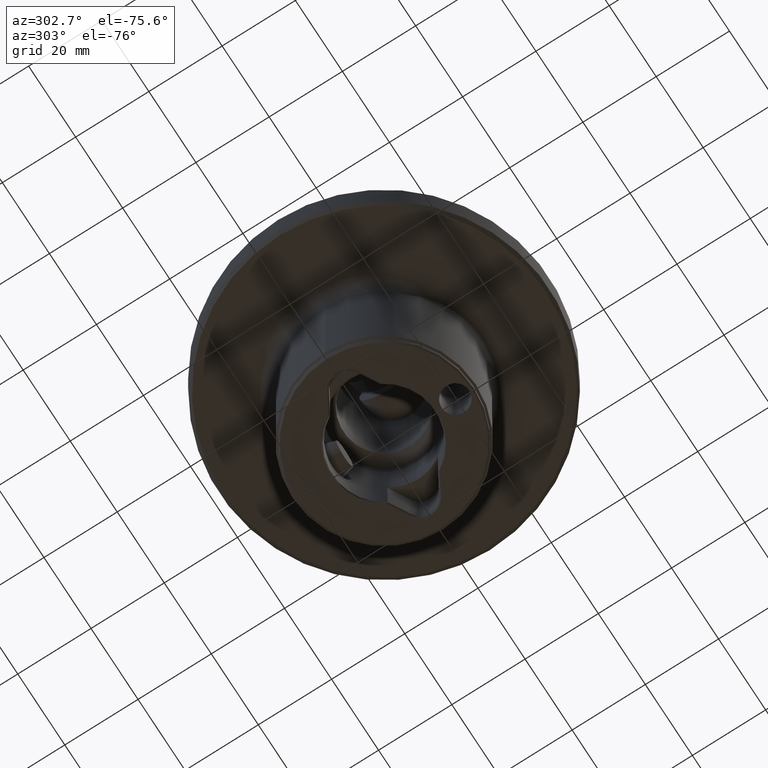
[diagram: clean part render]
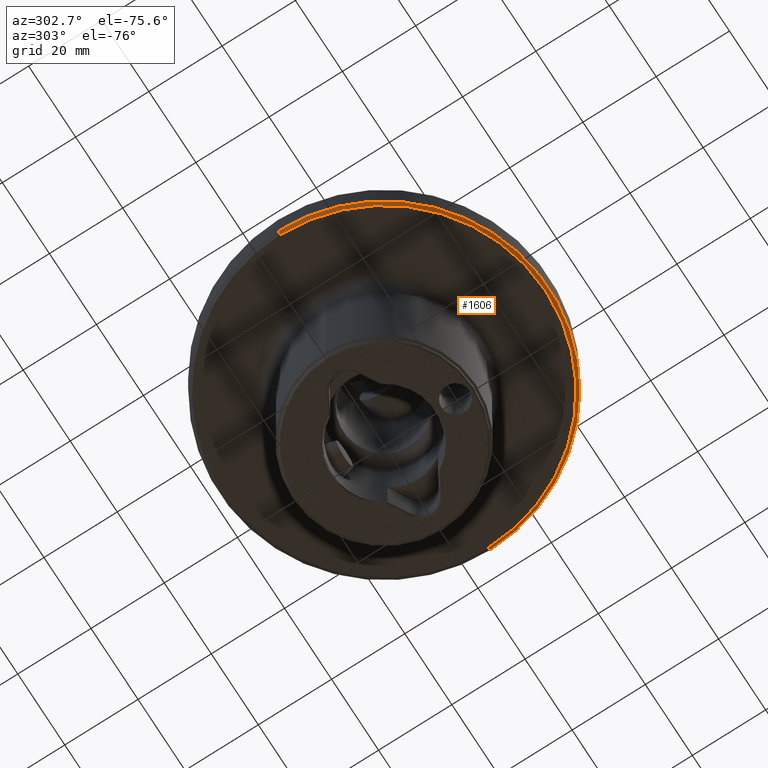
[diagram: same view with one face highlighted and labeled with its STEP entity id]
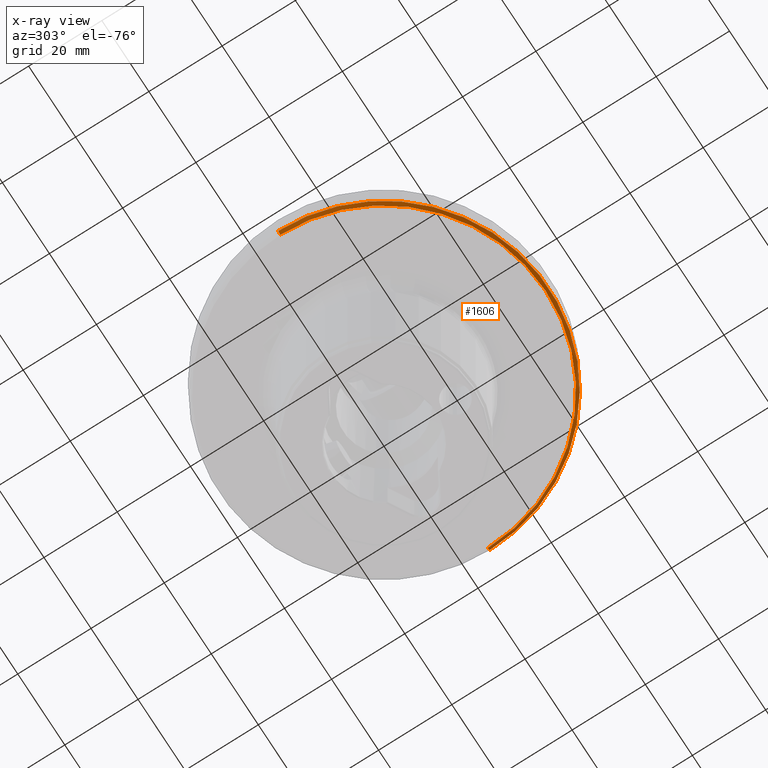
[diagram: x-ray of the same camera — body ghosted, the highlighted face saturated]
A machine part, auxiliary view. The second image highlights one B-rep face of the part: STEP entity #1606.
The next image is the same camera in x-ray: the body ghosted, the highlighted face saturated — about 0% of this face is hidden behind the body in this view.
In plain terms, the highlighted conical surface has half-angle 45 deg.
Its self-contained STEP definition (entity closure, byte-faithful):
#826=VERTEX_POINT('NONE',#2386);
#900=VERTEX_POINT('NONE',#2465);
#1194=VERTEX_POINT('NONE',#2792);
#1310=EDGE_CURVE('NONE',#1194,#900,#2919,.T.);
#1316=EDGE_CURVE('NONE',#1718,#826,#2925,.T.);
#1606=ADVANCED_FACE('NONE',(#3252),#3253,.T.);
#1718=VERTEX_POINT('NONE',#3385);
#1742=EDGE_CURVE('NONE',#826,#900,#3412,.T.);
#2152=EDGE_CURVE('NONE',#1718,#1194,#3866,.T.);
#2386=CARTESIAN_POINT('',(45.0,0.0,-11.05));
#2465=CARTESIAN_POINT('',(-45.0,5.5107285922007E-015,-11.05));
#2792=CARTESIAN_POINT('',(-44.15,5.45868282216325E-015,-11.9));
#2919=LINE('',#5074,#5075);
#2925=LINE('',#5084,#5085);
#3252=FACE_OUTER_BOUND('',#5596,.T.);
#3253=CONICAL_SURFACE('',#5597,44.15,0.785398163397445);
#3385=CARTESIAN_POINT('',(44.15,0.0,-11.9));
#3412=CIRCLE('',#5855,45.0);
#3866=CIRCLE('',#6823,44.15);
#5074=CARTESIAN_POINT('',(-44.15,5.40663705212579E-015,-11.9));
#5075=VECTOR('',#7869,1000.0);
#5084=CARTESIAN_POINT('',(44.15,0.0,-11.9));
#5085=VECTOR('',#7871,1000.0);
#5596=EDGE_LOOP('',(#8306,#8307,#8308,#8309));
#5597=AXIS2_PLACEMENT_3D('',#8310,#8311,#8312);
#5855=AXIS2_PLACEMENT_3D('',#8535,#8536,#8537);
#6823=AXIS2_PLACEMENT_3D('',#9062,#9063,#9064);
#7869=DIRECTION('',(-0.707106781186545,8.65927457071932E-017,0.70710678118655));
#7871=DIRECTION('',(0.707106781186545,0.0,0.70710678118655));
#8306=ORIENTED_EDGE('',*,*,#1310,.F.);
#8307=ORIENTED_EDGE('',*,*,#2152,.F.);
#8308=ORIENTED_EDGE('',*,*,#1316,.T.);
#8309=ORIENTED_EDGE('',*,*,#1742,.T.);
#8310=CARTESIAN_POINT('',(0.0,0.0,-11.9));
#8311=DIRECTION('',(-0.0,-0.0,1.0));
#8312=DIRECTION('',(1.0,0.0,0.0));
#8535=CARTESIAN_POINT('',(0.0,0.0,-11.05));
#8536=DIRECTION('',(0.0,0.0,-1.0));
#8537=DIRECTION('',(1.0,0.0,0.0));
#9062=CARTESIAN_POINT('',(0.0,0.0,-11.9));
#9063=DIRECTION('',(0.0,0.0,-1.0));
#9064=DIRECTION('',(1.0,0.0,0.0));